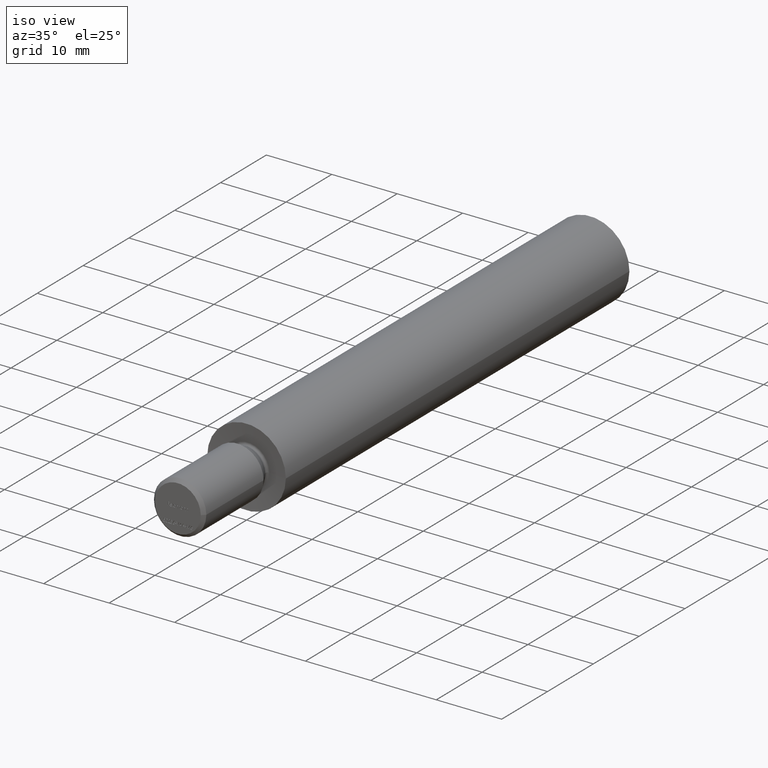
[diagram: clean part render]
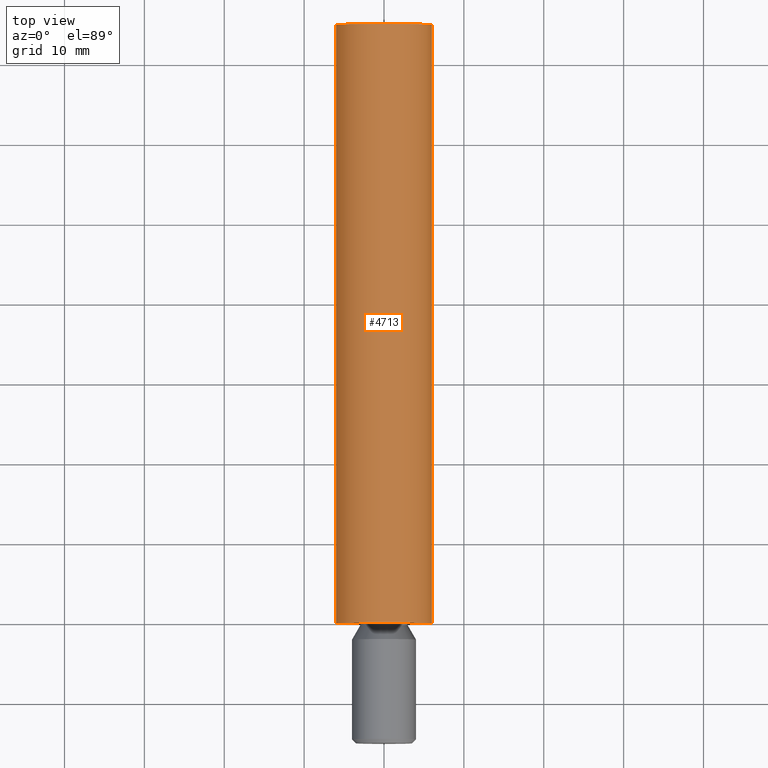
[diagram: tour spotlight — one face highlighted and labeled with its STEP entity id]
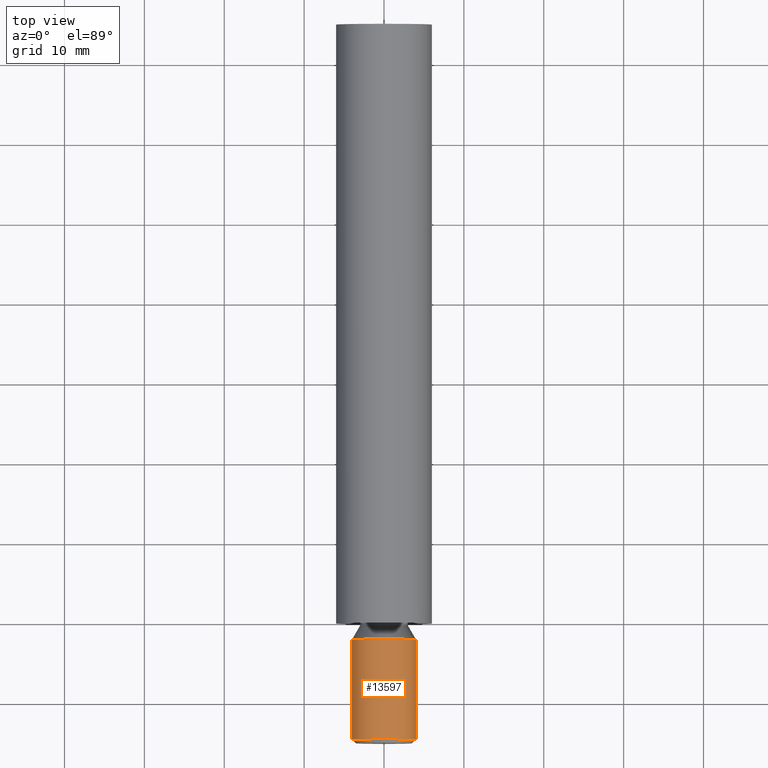
[diagram: tour spotlight — one face highlighted and labeled with its STEP entity id]
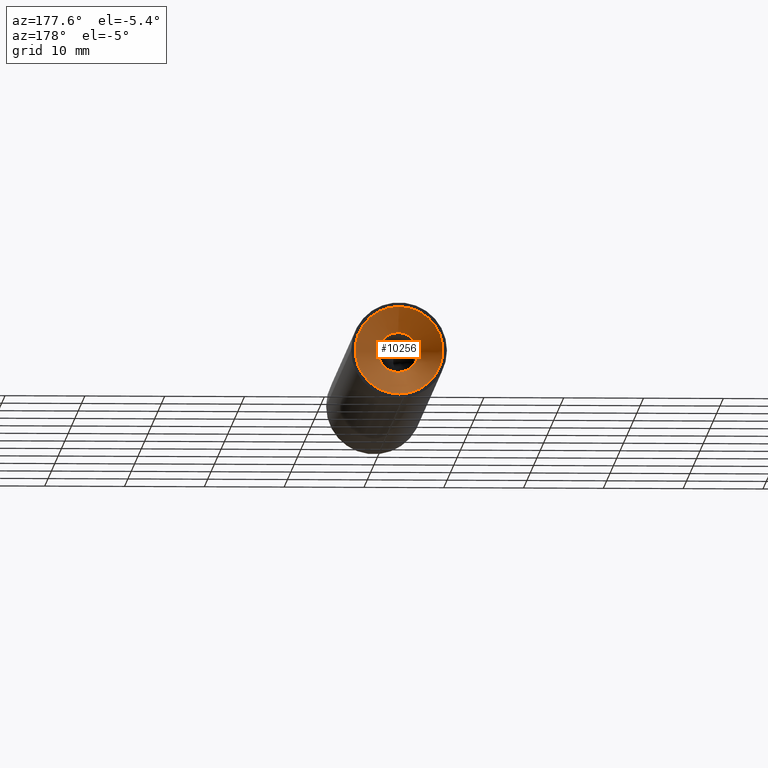
[diagram: tour spotlight — one face highlighted and labeled with its STEP entity id]
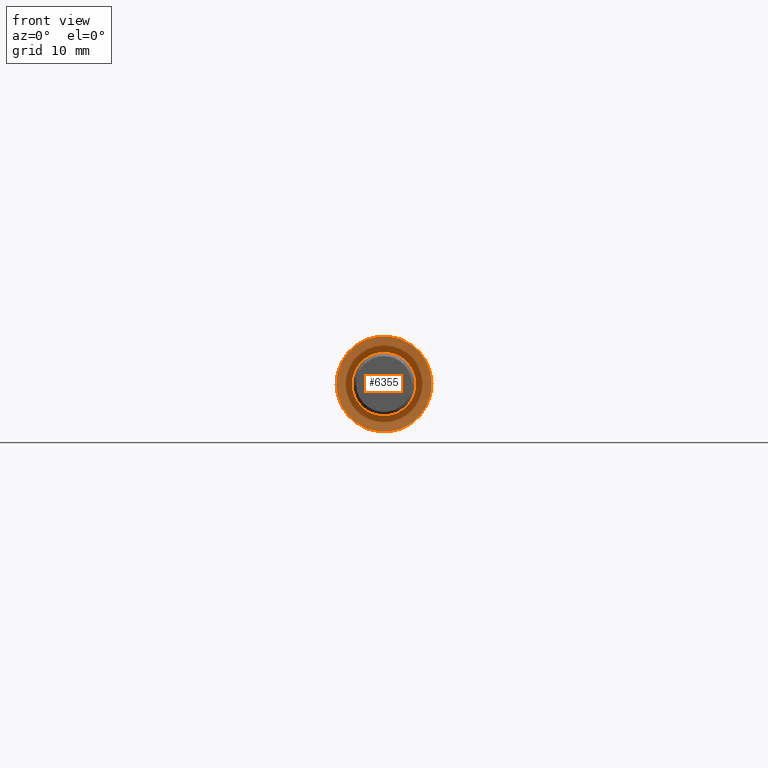
[diagram: tour spotlight — one face highlighted and labeled with its STEP entity id]
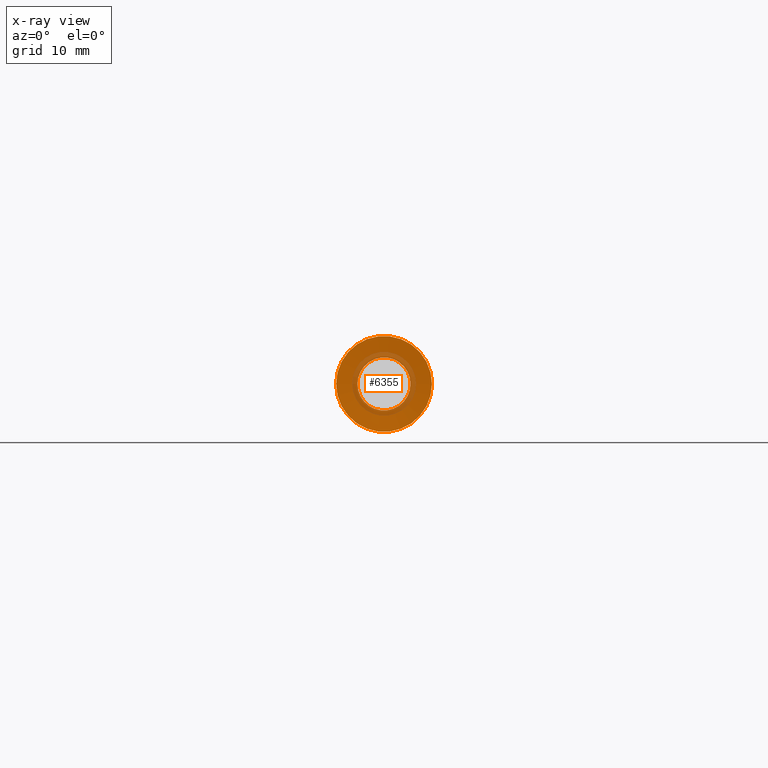
[diagram: x-ray of the same camera — body ghosted, this tour face saturated]
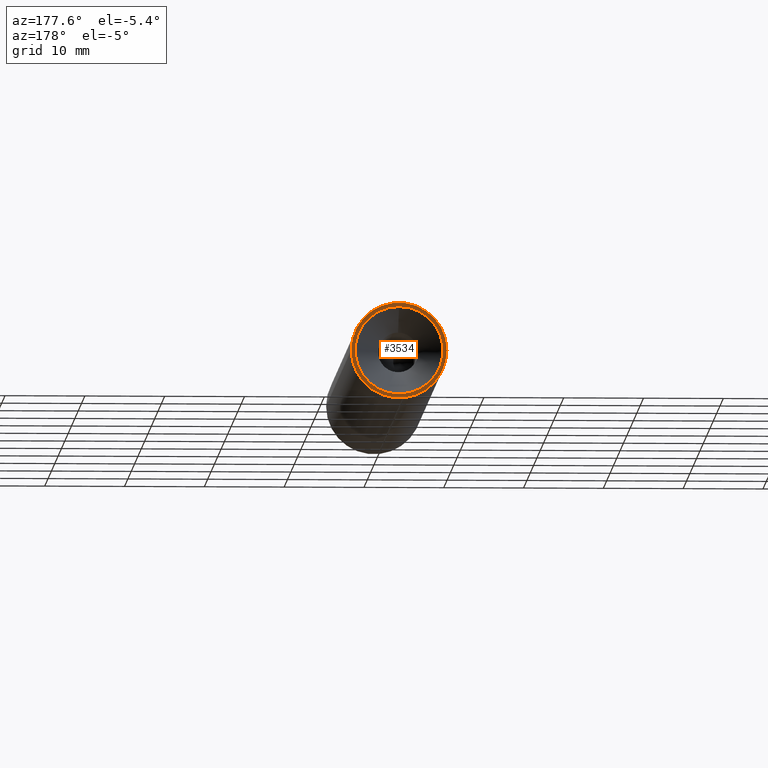
[diagram: tour spotlight — one face highlighted and labeled with its STEP entity id]
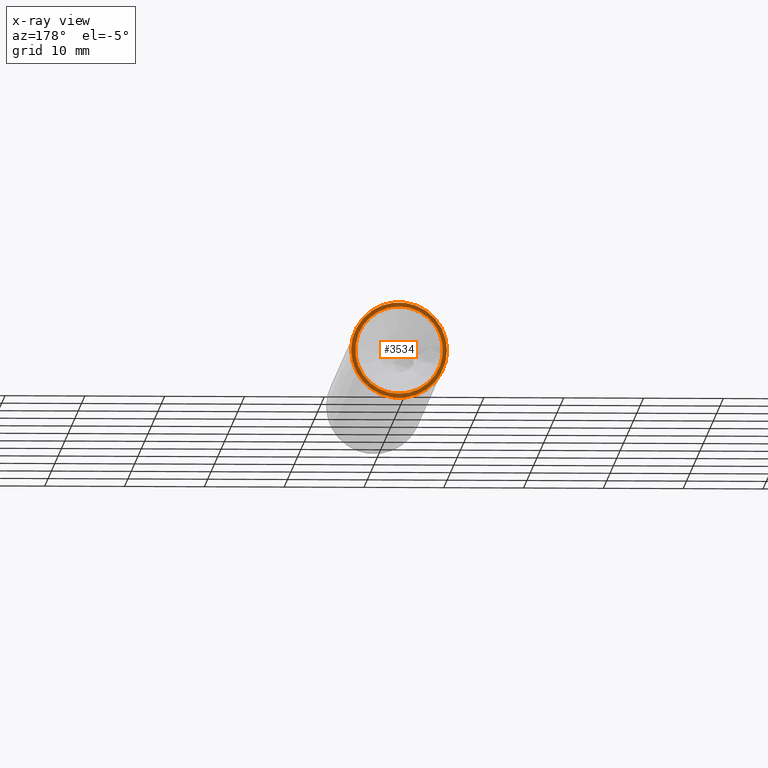
[diagram: x-ray of the same camera — body ghosted, this tour face saturated]
A machine part: a face-by-face anatomy tour. The part has 269 B-rep faces; the first image is the clean iso view, then the 5 largest visible faces are spotlighted one at a time (largest first), each with its STEP entity span.

Face 1 — top view, entity #4713. In plain terms, the highlighted cylindrical surface (bore or boss wall) has radius 6 mm, axis along (0, -1, -0).
Definition (entity closure, byte-faithful):
#854 = DIRECTION ( 'NONE',  ( 1.000000000000000000, 2.139922160430261983E-33, 0.000000000000000000 ) ) ;
#1212 = DIRECTION ( 'NONE',  ( 1.000000000000000000, 0.000000000000000000, 0.000000000000000000 ) ) ;
#1990 = DIRECTION ( 'NONE',  ( 2.139922160430262325E-33, -1.000000000000000000, -0.000000000000000000 ) ) ;
#2733 = CARTESIAN_POINT ( 'NONE',  ( 0.000000000000000000, 75.00000000000000000, 0.000000000000000000 ) ) ;
#3301 = EDGE_LOOP ( 'NONE', ( #8264 ) ) ;
#3889 = DIRECTION ( 'NONE',  ( 1.000000000000000000, 0.000000000000000000, 0.000000000000000000 ) ) ;
#3908 = AXIS2_PLACEMENT_3D ( 'NONE', #2733, #6050, #3889 ) ;
#3929 = VERTEX_POINT ( 'NONE', #7374 ) ;
#4555 = DIRECTION ( 'NONE',  ( 2.139922160430262325E-33, -1.000000000000000000, -0.000000000000000000 ) ) ;
#4713 = ADVANCED_FACE ( 'NONE', ( #12475, #6838 ), #7512, .T. ) ;
#4775 = CIRCLE ( 'NONE', #3908, 5.999999999999996447 ) ;
#5220 = AXIS2_PLACEMENT_3D ( 'NONE', #10391, #1990, #854 ) ;
#6050 = DIRECTION ( 'NONE',  ( 2.139922160430262325E-33, -1.000000000000000000, -0.000000000000000000 ) ) ;
#6838 = FACE_OUTER_BOUND ( 'NONE', #3301, .T. ) ;
#7374 = CARTESIAN_POINT ( 'NONE',  ( 5.999999999999996447, 75.00000000000000000, 0.000000000000000000 ) ) ;
#7488 = EDGE_CURVE ( 'NONE', #3929, #3929, #4775, .T. ) ;
#7512 = CYLINDRICAL_SURFACE ( 'NONE', #10710, 6.000000000000003553 ) ;
#7782 = ORIENTED_EDGE ( 'NONE', *, *, #7488, .T. ) ;
#7920 = VERTEX_POINT ( 'NONE', #8484 ) ;
#8264 = ORIENTED_EDGE ( 'NONE', *, *, #13488, .F. ) ;
#8484 = CARTESIAN_POINT ( 'NONE',  ( 6.000000000000009770, 1.283953296258159242E-32, 0.000000000000000000 ) ) ;
#8743 = CARTESIAN_POINT ( 'NONE',  ( 1.925929944387235853E-31, -15.00000000000000000, 0.000000000000000000 ) ) ;
#9041 = CIRCLE ( 'NONE', #5220, 6.000000000000009770 ) ;
#10391 = CARTESIAN_POINT ( 'NONE',  ( 1.604941620322696398E-31, 0.000000000000000000, 0.000000000000000000 ) ) ;
#10710 = AXIS2_PLACEMENT_3D ( 'NONE', #8743, #4555, #1212 ) ;
#12475 = FACE_OUTER_BOUND ( 'NONE', #13464, .T. ) ;
#13464 = EDGE_LOOP ( 'NONE', ( #7782 ) ) ;
#13488 = EDGE_CURVE ( 'NONE', #7920, #7920, #9041, .T. ) ;

Face 2 — top view, entity #13597. In plain terms, the highlighted cylindrical surface (bore or boss wall) has radius 4 mm, axis along (0, -1, -0).
Definition (entity closure, byte-faithful):
#843 = DIRECTION ( 'NONE',  ( -2.139922160430250693E-33, 1.000000000000000000, 0.000000000000000000 ) ) ;
#2562 = DIRECTION ( 'NONE',  ( 1.000000000000000000, 0.000000000000000000, 0.000000000000000000 ) ) ;
#2692 = ORIENTED_EDGE ( 'NONE', *, *, #12493, .T. ) ;
#2998 = DIRECTION ( 'NONE',  ( 2.139922160430262325E-33, -1.000000000000000000, -0.000000000000000000 ) ) ;
#3083 = DIRECTION ( 'NONE',  ( 1.000000000000000000, 0.000000000000000000, 0.000000000000000000 ) ) ;
#3439 = DIRECTION ( 'NONE',  ( 2.139922160430262325E-33, -1.000000000000000000, -0.000000000000000000 ) ) ;
#4516 = CIRCLE ( 'NONE', #13299, 4.000000000000000000 ) ;
#5417 = VERTEX_POINT ( 'NONE', #12649 ) ;
#5459 = VERTEX_POINT ( 'NONE', #11629 ) ;
#5705 = EDGE_CURVE ( 'NONE', #5417, #5417, #4516, .T. ) ;
#5810 = EDGE_LOOP ( 'NONE', ( #10535 ) ) ;
#6265 = CARTESIAN_POINT ( 'NONE',  ( 1.925929944387235853E-31, -15.00000000000000000, 0.000000000000000000 ) ) ;
#6729 = CYLINDRICAL_SURFACE ( 'NONE', #6794, 4.000000000000000888 ) ;
#6794 = AXIS2_PLACEMENT_3D ( 'NONE', #6265, #2998, #3083 ) ;
#7071 = FACE_OUTER_BOUND ( 'NONE', #5810, .T. ) ;
#9291 = EDGE_LOOP ( 'NONE', ( #2692 ) ) ;
#9878 = FACE_OUTER_BOUND ( 'NONE', #9291, .T. ) ;
#9976 = CIRCLE ( 'NONE', #12924, 4.000000000000000888 ) ;
#10295 = DIRECTION ( 'NONE',  ( 1.000000000000000000, 0.000000000000000000, 0.000000000000000000 ) ) ;
#10535 = ORIENTED_EDGE ( 'NONE', *, *, #5705, .T. ) ;
#11629 = CARTESIAN_POINT ( 'NONE',  ( 4.000000000000000888, -14.49999999999998934, 0.000000000000000000 ) ) ;
#11931 = CARTESIAN_POINT ( 'NONE',  ( 1.647740063531301761E-31, -2.000000000000000000, 0.000000000000000000 ) ) ;
#12493 = EDGE_CURVE ( 'NONE', #5459, #5459, #9976, .T. ) ;
#12649 = CARTESIAN_POINT ( 'NONE',  ( 4.000000000000000000, -2.000000000000000000, 0.000000000000000000 ) ) ;
#12924 = AXIS2_PLACEMENT_3D ( 'NONE', #13617, #843, #10295 ) ;
#13299 = AXIS2_PLACEMENT_3D ( 'NONE', #11931, #3439, #2562 ) ;
#13597 = ADVANCED_FACE ( 'NONE', ( #9878, #7071 ), #6729, .T. ) ;
#13617 = CARTESIAN_POINT ( 'NONE',  ( 1.915230333585084348E-31, -14.49999999999998934, 0.000000000000000000 ) ) ;

Face 3 — auxiliary view, entity #10256. In plain terms, the highlighted conical surface has half-angle 45 deg.
Definition (entity closure, byte-faithful):
#748 = AXIS2_PLACEMENT_3D ( 'NONE', #6028, #5064, #1066 ) ;
#1066 = DIRECTION ( 'NONE',  ( 0.000000000000000000, 0.000000000000000000, 1.000000000000000000 ) ) ;
#1523 = ORIENTED_EDGE ( 'NONE', *, *, #4740, .T. ) ;
#2950 = DIRECTION ( 'NONE',  ( 0.000000000000000000, 0.000000000000000000, 1.000000000000000000 ) ) ;
#3684 = AXIS2_PLACEMENT_3D ( 'NONE', #10163, #5955, #2950 ) ;
#3822 = ORIENTED_EDGE ( 'NONE', *, *, #11101, .T. ) ;
#4711 = CIRCLE ( 'NONE', #4807, 5.500000000000000000 ) ;
#4740 = EDGE_CURVE ( 'NONE', #12030, #12030, #4711, .T. ) ;
#4807 = AXIS2_PLACEMENT_3D ( 'NONE', #9411, #12700, #9639 ) ;
#4973 = FACE_BOUND ( 'NONE', #12777, .T. ) ;
#5064 = DIRECTION ( 'NONE',  ( -0.000000000000000000, 1.000000000000000000, -0.000000000000000000 ) ) ;
#5436 = CONICAL_SURFACE ( 'NONE', #748, 5.500000000000000000, 0.7853981633974479459 ) ;
#5955 = DIRECTION ( 'NONE',  ( 0.000000000000000000, -1.000000000000000000, 0.000000000000000000 ) ) ;
#6028 = CARTESIAN_POINT ( 'NONE',  ( -1.604941620322696617E-31, 75.00000000000000000, 0.000000000000000000 ) ) ;
#7804 = CIRCLE ( 'NONE', #3684, 2.499999999999992895 ) ;
#8256 = VERTEX_POINT ( 'NONE', #8438 ) ;
#8438 = CARTESIAN_POINT ( 'NONE',  ( -1.604941620322696617E-31, 71.99999999999998579, 2.499999999999992895 ) ) ;
#8556 = EDGE_LOOP ( 'NONE', ( #1523 ) ) ;
#8607 = FACE_OUTER_BOUND ( 'NONE', #8556, .T. ) ;
#9411 = CARTESIAN_POINT ( 'NONE',  ( -1.604941620322696617E-31, 75.00000000000000000, 0.000000000000000000 ) ) ;
#9630 = CARTESIAN_POINT ( 'NONE',  ( -1.604941620322696617E-31, 75.00000000000000000, 5.500000000000000000 ) ) ;
#9639 = DIRECTION ( 'NONE',  ( 0.000000000000000000, 0.000000000000000000, 1.000000000000000000 ) ) ;
#10163 = CARTESIAN_POINT ( 'NONE',  ( -1.604941620322696617E-31, 71.99999999999998579, 0.000000000000000000 ) ) ;
#10256 = ADVANCED_FACE ( 'NONE', ( #4973, #8607 ), #5436, .F. ) ;
#11101 = EDGE_CURVE ( 'NONE', #8256, #8256, #7804, .T. ) ;
#12030 = VERTEX_POINT ( 'NONE', #9630 ) ;
#12700 = DIRECTION ( 'NONE',  ( -0.000000000000000000, 1.000000000000000000, -0.000000000000000000 ) ) ;
#12777 = EDGE_LOOP ( 'NONE', ( #3822 ) ) ;

Face 4 — front view, entity #6355. An x-ray twin of the same camera follows (body ghosted, this face saturated) — the face is partly hidden behind the body. In plain terms, the highlighted conical surface has half-angle 85 deg.
Definition (entity closure, byte-faithful):
#854 = DIRECTION ( 'NONE',  ( 1.000000000000000000, 2.139922160430261983E-33, 0.000000000000000000 ) ) ;
#1637 = DIRECTION ( 'NONE',  ( 2.139922160430262325E-33, -1.000000000000000000, -0.000000000000000000 ) ) ;
#1990 = DIRECTION ( 'NONE',  ( 2.139922160430262325E-33, -1.000000000000000000, -0.000000000000000000 ) ) ;
#2032 = AXIS2_PLACEMENT_3D ( 'NONE', #13264, #1637, #11118 ) ;
#2321 = FACE_BOUND ( 'NONE', #13096, .T. ) ;
#2652 = FACE_OUTER_BOUND ( 'NONE', #7139, .T. ) ;
#3820 = AXIS2_PLACEMENT_3D ( 'NONE', #11893, #12962, #7691 ) ;
#4904 = ORIENTED_EDGE ( 'NONE', *, *, #13488, .T. ) ;
#5220 = AXIS2_PLACEMENT_3D ( 'NONE', #10391, #1990, #854 ) ;
#6355 = ADVANCED_FACE ( 'NONE', ( #2652, #2321 ), #7445, .F. ) ;
#6760 = VERTEX_POINT ( 'NONE', #12825 ) ;
#7139 = EDGE_LOOP ( 'NONE', ( #4904 ) ) ;
#7445 = CONICAL_SURFACE ( 'NONE', #2032, 3.320072066050799187, 1.483529864195179737 ) ;
#7676 = ORIENTED_EDGE ( 'NONE', *, *, #10048, .F. ) ;
#7691 = DIRECTION ( 'NONE',  ( 1.000000000000000000, 0.000000000000000000, 0.000000000000000000 ) ) ;
#7920 = VERTEX_POINT ( 'NONE', #8484 ) ;
#7943 = CIRCLE ( 'NONE', #3820, 3.320072066050799187 ) ;
#8484 = CARTESIAN_POINT ( 'NONE',  ( 6.000000000000009770, 1.283953296258159242E-32, 0.000000000000000000 ) ) ;
#9041 = CIRCLE ( 'NONE', #5220, 6.000000000000009770 ) ;
#10048 = EDGE_CURVE ( 'NONE', #6760, #6760, #7943, .T. ) ;
#10391 = CARTESIAN_POINT ( 'NONE',  ( 1.604941620322696398E-31, 0.000000000000000000, 0.000000000000000000 ) ) ;
#11118 = DIRECTION ( 'NONE',  ( 1.000000000000000000, 0.000000000000000000, 0.000000000000000000 ) ) ;
#11893 = CARTESIAN_POINT ( 'NONE',  ( 1.599924287923588925E-31, 0.2344633132870081738, 0.000000000000000000 ) ) ;
#12825 = CARTESIAN_POINT ( 'NONE',  ( 3.320072066050799187, 0.2344633132870081738, 0.000000000000000000 ) ) ;
#12962 = DIRECTION ( 'NONE',  ( 2.139922160430262325E-33, -1.000000000000000000, -0.000000000000000000 ) ) ;
#13096 = EDGE_LOOP ( 'NONE', ( #7676 ) ) ;
#13264 = CARTESIAN_POINT ( 'NONE',  ( 1.599924287923588925E-31, 0.2344633132870081738, 0.000000000000000000 ) ) ;
#13488 = EDGE_CURVE ( 'NONE', #7920, #7920, #9041, .T. ) ;

Face 5 — auxiliary view, entity #3534. An x-ray twin of the same camera follows (body ghosted, this face saturated) — the face is partly hidden behind the body. In plain terms, the highlighted planar face has unit normal (-0, 1, 0).
Definition (entity closure, byte-faithful):
#595 = EDGE_LOOP ( 'NONE', ( #3804 ) ) ;
#1659 = EDGE_LOOP ( 'NONE', ( #7124 ) ) ;
#2733 = CARTESIAN_POINT ( 'NONE',  ( 0.000000000000000000, 75.00000000000000000, 0.000000000000000000 ) ) ;
#3534 = ADVANCED_FACE ( 'NONE', ( #12513, #4919 ), #11244, .T. ) ;
#3804 = ORIENTED_EDGE ( 'NONE', *, *, #4740, .F. ) ;
#3889 = DIRECTION ( 'NONE',  ( 1.000000000000000000, 0.000000000000000000, 0.000000000000000000 ) ) ;
#3908 = AXIS2_PLACEMENT_3D ( 'NONE', #2733, #6050, #3889 ) ;
#3929 = VERTEX_POINT ( 'NONE', #7374 ) ;
#4711 = CIRCLE ( 'NONE', #4807, 5.500000000000000000 ) ;
#4740 = EDGE_CURVE ( 'NONE', #12030, #12030, #4711, .T. ) ;
#4775 = CIRCLE ( 'NONE', #3908, 5.999999999999996447 ) ;
#4807 = AXIS2_PLACEMENT_3D ( 'NONE', #9411, #12700, #9639 ) ;
#4919 = FACE_OUTER_BOUND ( 'NONE', #1659, .T. ) ;
#6050 = DIRECTION ( 'NONE',  ( 2.139922160430262325E-33, -1.000000000000000000, -0.000000000000000000 ) ) ;
#6948 = DIRECTION ( 'NONE',  ( -2.139922160430262325E-33, 1.000000000000000000, 0.000000000000000000 ) ) ;
#7091 = CARTESIAN_POINT ( 'NONE',  ( 1.373780055810155475E-65, 75.00000000000000000, 0.000000000000000000 ) ) ;
#7124 = ORIENTED_EDGE ( 'NONE', *, *, #7488, .F. ) ;
#7374 = CARTESIAN_POINT ( 'NONE',  ( 5.999999999999996447, 75.00000000000000000, 0.000000000000000000 ) ) ;
#7488 = EDGE_CURVE ( 'NONE', #3929, #3929, #4775, .T. ) ;
#7952 = AXIS2_PLACEMENT_3D ( 'NONE', #7091, #6948, #9072 ) ;
#9072 = DIRECTION ( 'NONE',  ( -1.000000000000000000, -2.139922160430262325E-33, 0.000000000000000000 ) ) ;
#9411 = CARTESIAN_POINT ( 'NONE',  ( -1.604941620322696617E-31, 75.00000000000000000, 0.000000000000000000 ) ) ;
#9630 = CARTESIAN_POINT ( 'NONE',  ( -1.604941620322696617E-31, 75.00000000000000000, 5.500000000000000000 ) ) ;
#9639 = DIRECTION ( 'NONE',  ( 0.000000000000000000, 0.000000000000000000, 1.000000000000000000 ) ) ;
#11244 = PLANE ( 'NONE',  #7952 ) ;
#12030 = VERTEX_POINT ( 'NONE', #9630 ) ;
#12513 = FACE_BOUND ( 'NONE', #595, .T. ) ;
#12700 = DIRECTION ( 'NONE',  ( -0.000000000000000000, 1.000000000000000000, -0.000000000000000000 ) ) ;